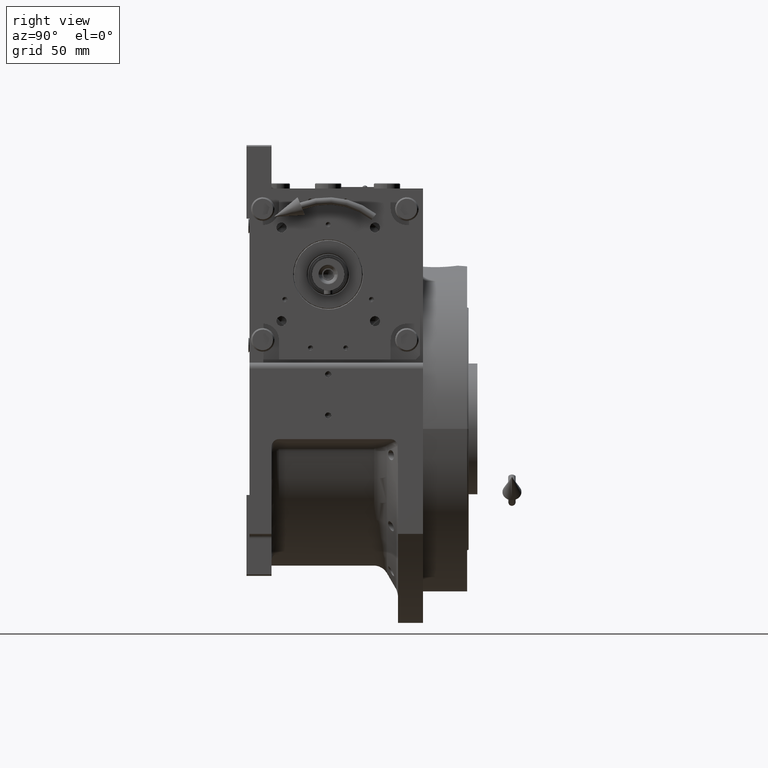
[diagram: clean part render]
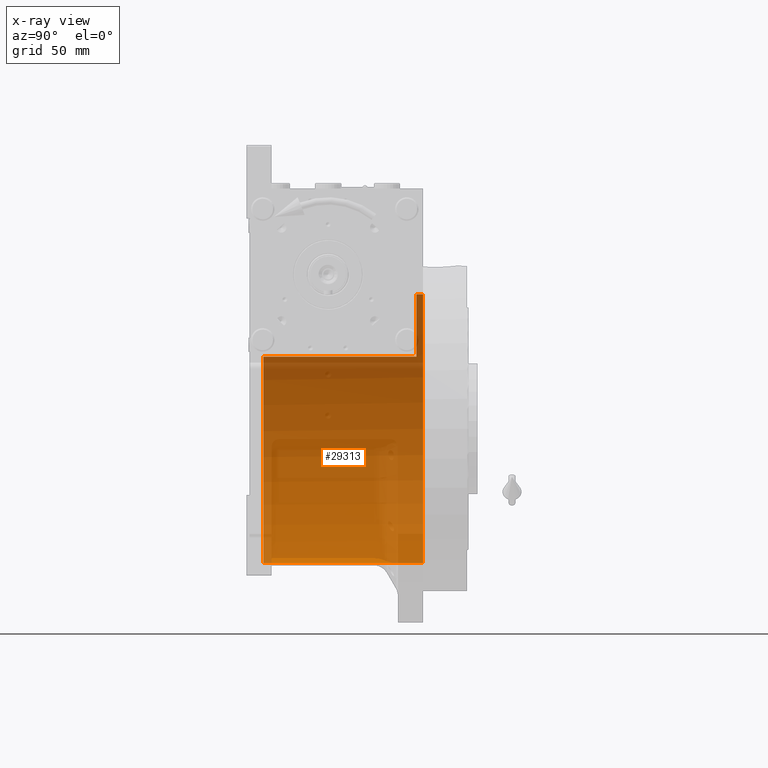
[diagram: x-ray — body ghosted, one internal face saturated and labeled with its STEP entity id]
A machine part, right view, then the same camera in x-ray: the body is ghosted and one INTERNAL B-rep face — a face not visible from any outside direction — is saturated and labeled: STEP entity #29313.
In plain terms, the highlighted cylindrical surface (partial cylindrical patch) has radius 91.5 mm, axis along (0, -1, 0).
Its self-contained STEP definition (entity closure, byte-faithful):
#2255 = CARTESIAN_POINT ( 'NONE',  ( -77.27386362800814368, -44.00000000000000000, 49.00000000000000000 ) ) ;
#3250 = DIRECTION ( 'NONE',  ( -0.000000000000000000, -1.000000000000000000, -0.000000000000000000 ) ) ;
#3555 = CIRCLE ( 'NONE', #65110, 91.50000000000000000 ) ;
#3671 = LINE ( 'NONE', #7820, #40303 ) ;
#4839 = FACE_OUTER_BOUND ( 'NONE', #42795, .T. ) ;
#6189 = CIRCLE ( 'NONE', #20526, 91.50000000000000000 ) ;
#6375 = ORIENTED_EDGE ( 'NONE', *, *, #46677, .F. ) ;
#6640 = EDGE_CURVE ( 'NONE', #66456, #40885, #54067, .T. ) ;
#7769 = AXIS2_PLACEMENT_3D ( 'NONE', #31008, #46499, #25871 ) ;
#7820 = CARTESIAN_POINT ( 'NONE',  ( -77.27386362800812947, 69.00000000000004263, 48.99999999999998579 ) ) ;
#7892 = AXIS2_PLACEMENT_3D ( 'NONE', #28378, #49355, #22527 ) ;
#12135 = CARTESIAN_POINT ( 'NONE',  ( 0.000000000000000000, 64.50000000000000000, -91.50000000000000000 ) ) ;
#13154 = VERTEX_POINT ( 'NONE', #2255 ) ;
#14961 = CARTESIAN_POINT ( 'NONE',  ( 0.000000000000000000, -44.00000000000000000, 0.000000000000000000 ) ) ;
#15491 = ORIENTED_EDGE ( 'NONE', *, *, #26685, .F. ) ;
#17193 = CARTESIAN_POINT ( 'NONE',  ( 1.120551821219827868E-14, 60.00000000000000000, 91.50000000000000000 ) ) ;
#18501 = ORIENTED_EDGE ( 'NONE', *, *, #53723, .F. ) ;
#19657 = VECTOR ( 'NONE', #47065, 1000.000000000000000 ) ;
#20526 = AXIS2_PLACEMENT_3D ( 'NONE', #40111, #3250, #50426 ) ;
#22527 = DIRECTION ( 'NONE',  ( 1.776356839400250465E-15, 0.000000000000000000, -1.000000000000000000 ) ) ;
#25529 = CYLINDRICAL_SURFACE ( 'NONE', #7769, 91.50000000000000000 ) ;
#25871 = DIRECTION ( 'NONE',  ( 0.000000000000000000, 0.000000000000000000, -1.000000000000000000 ) ) ;
#26247 = CARTESIAN_POINT ( 'NONE',  ( 1.120551821219827868E-14, 64.50000000000000000, 91.50000000000000000 ) ) ;
#26559 = CIRCLE ( 'NONE', #7892, 91.50000000000000000 ) ;
#26685 = EDGE_CURVE ( 'NONE', #49992, #45744, #62536, .T. ) ;
#27517 = CARTESIAN_POINT ( 'NONE',  ( -77.27386362800814368, 60.00000000000000000, 48.99999999999998579 ) ) ;
#28378 = CARTESIAN_POINT ( 'NONE',  ( 0.000000000000000000, 60.00000000000000000, 0.000000000000000000 ) ) ;
#28900 = ORIENTED_EDGE ( 'NONE', *, *, #62036, .F. ) ;
#28973 = DIRECTION ( 'NONE',  ( 0.000000000000000000, -1.000000000000000000, 0.000000000000000000 ) ) ;
#29313 = ADVANCED_FACE ( 'NONE', ( #4839 ), #25529, .F. ) ;
#29993 = CARTESIAN_POINT ( 'NONE',  ( 0.000000000000000000, -44.00000000000000000, -91.50000000000000000 ) ) ;
#31008 = CARTESIAN_POINT ( 'NONE',  ( 0.000000000000000000, 69.00000000000004263, 0.000000000000000000 ) ) ;
#31241 = CARTESIAN_POINT ( 'NONE',  ( 0.000000000000000000, 69.00000000000004263, -91.50000000000000000 ) ) ;
#35260 = DIRECTION ( 'NONE',  ( 0.000000000000000000, 0.000000000000000000, 1.000000000000000000 ) ) ;
#35938 = DIRECTION ( 'NONE',  ( 0.000000000000000000, 1.000000000000000000, 0.000000000000000000 ) ) ;
#39840 = DIRECTION ( 'NONE',  ( -0.000000000000000000, 1.000000000000000000, -0.000000000000000000 ) ) ;
#40111 = CARTESIAN_POINT ( 'NONE',  ( 0.000000000000000000, 64.50000000000000000, 0.000000000000000000 ) ) ;
#40303 = VECTOR ( 'NONE', #39840, 1000.000000000000000 ) ;
#40885 = VERTEX_POINT ( 'NONE', #17193 ) ;
#41884 = VERTEX_POINT ( 'NONE', #27517 ) ;
#42795 = EDGE_LOOP ( 'NONE', ( #28900, #64212, #18501, #6375, #61655, #15491 ) ) ;
#45744 = VERTEX_POINT ( 'NONE', #29993 ) ;
#46499 = DIRECTION ( 'NONE',  ( 0.000000000000000000, -1.000000000000000000, 0.000000000000000000 ) ) ;
#46677 = EDGE_CURVE ( 'NONE', #13154, #41884, #3671, .T. ) ;
#47065 = DIRECTION ( 'NONE',  ( 0.000000000000000000, -1.000000000000000000, 0.000000000000000000 ) ) ;
#49355 = DIRECTION ( 'NONE',  ( 0.000000000000000000, 1.000000000000000000, 0.000000000000000000 ) ) ;
#49992 = VERTEX_POINT ( 'NONE', #12135 ) ;
#50426 = DIRECTION ( 'NONE',  ( 0.000000000000000000, 0.000000000000000000, 1.000000000000000000 ) ) ;
#53723 = EDGE_CURVE ( 'NONE', #41884, #40885, #26559, .T. ) ;
#54067 = LINE ( 'NONE', #65062, #55119 ) ;
#55119 = VECTOR ( 'NONE', #28973, 1000.000000000000000 ) ;
#57721 = EDGE_CURVE ( 'NONE', #45744, #13154, #3555, .T. ) ;
#61655 = ORIENTED_EDGE ( 'NONE', *, *, #57721, .F. ) ;
#62036 = EDGE_CURVE ( 'NONE', #66456, #49992, #6189, .T. ) ;
#62536 = LINE ( 'NONE', #31241, #19657 ) ;
#64212 = ORIENTED_EDGE ( 'NONE', *, *, #6640, .T. ) ;
#65062 = CARTESIAN_POINT ( 'NONE',  ( 1.120551821219827868E-14, 69.00000000000004263, 91.50000000000000000 ) ) ;
#65110 = AXIS2_PLACEMENT_3D ( 'NONE', #14961, #35938, #35260 ) ;
#66456 = VERTEX_POINT ( 'NONE', #26247 ) ;